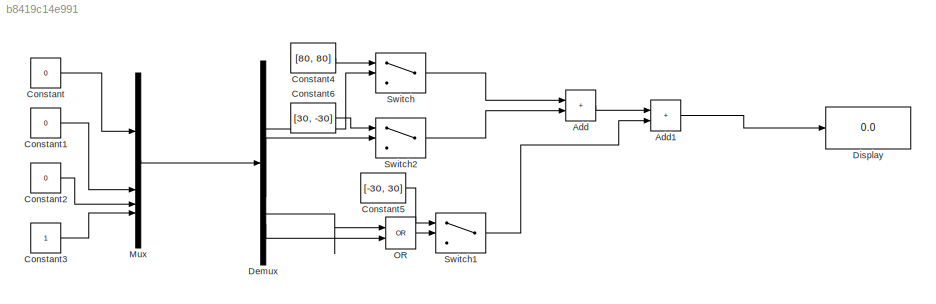
MODEL slx_b8419c14e991
KIND model
CONFIG AbsTol = auto
CONFIG EnableMultiTasking = off
CONFIG FixedStep = auto
CONFIG MaxStep = auto
CONFIG MinStep = auto
CONFIG RelTol = 1e-3
CONFIG SampleTimeConstraint = Unconstrained
CONFIG SolverName = VariableStepAuto
CONFIG StartTime = 0.0
CONFIG StopTime = 10.0
BLOCK [Sum] Add
  IconShape = rectangular
BLOCK [Sum] Add1
  IconShape = rectangular
BLOCK [Constant] Constant
  Value = 0
BLOCK [Constant] Constant1
  Value = 0
BLOCK [Constant] Constant2
  Value = 0
BLOCK [Constant] Constant3
BLOCK [Constant] Constant4
  Value = [80, 80]
  VectorParams1D = off
BLOCK [Constant] Constant5
  Value = [-30, 30]
  VectorParams1D = off
BLOCK [Constant] Constant6
  Value = [30, -30]
  VectorParams1D = off
BLOCK [Demux] Demux
BLOCK [Display] Display
  Decimation = 1
BLOCK [Mux] Mux
  DisplayOption = bar
BLOCK [Logic] OR
  AllPortsSameDT = off
  IconShape = distinctive
  Operator = OR
  OutDataTypeStr = boolean
BLOCK [Switch] Switch
  Criteria = u2 ~= 0
  InputSameDT = off
  SaturateOnIntegerOverflow = off
BLOCK [Switch] Switch1
  Criteria = u2 ~= 0
  InputSameDT = off
  SaturateOnIntegerOverflow = off
BLOCK [Switch] Switch2
  Criteria = u2 ~= 0
  InputSameDT = off
  SaturateOnIntegerOverflow = off
LINE Add1:1 -> Display:1
LINE Add:1 -> Add1:1
LINE Constant1:1 -> Mux:2
LINE Constant2:1 -> Mux:3
LINE Constant3:1 -> Mux:4
LINE Constant4:1 -> Switch:1
LINE Constant5:1 -> Switch1:1
LINE Constant6:1 -> Switch2:1
LINE Constant:1 -> Mux:1
LINE Demux:1 -> Switch:2
LINE Demux:2 -> Switch2:2
LINE Demux:3 -> OR:1
LINE Demux:4 -> OR:2
LINE Mux:1 -> Demux:1
LINE OR:1 -> Switch1:2
LINE Switch1:1 -> Add1:2
LINE Switch2:1 -> Add:2
LINE Switch:1 -> Add:1
